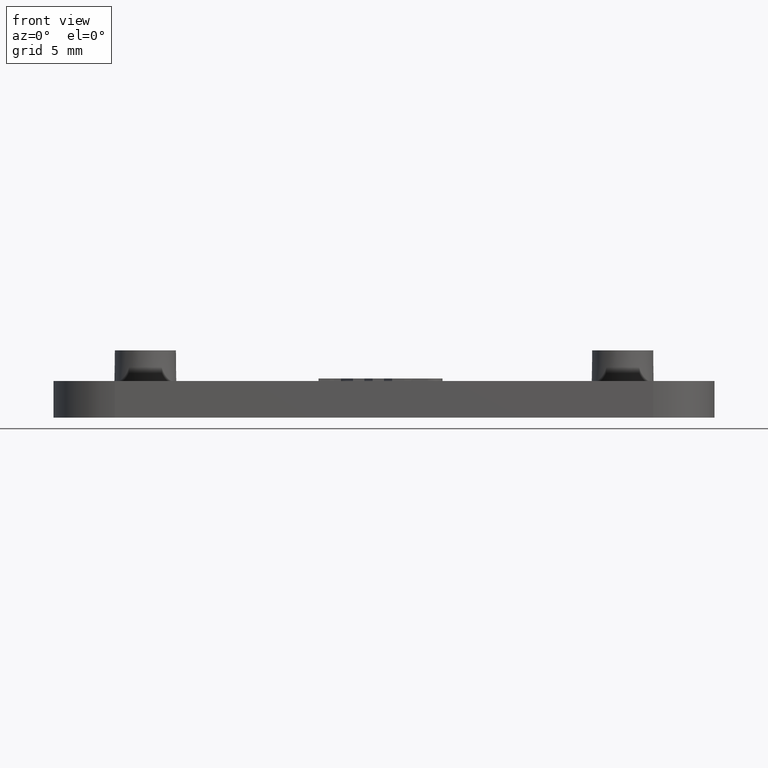
[diagram: clean part render]
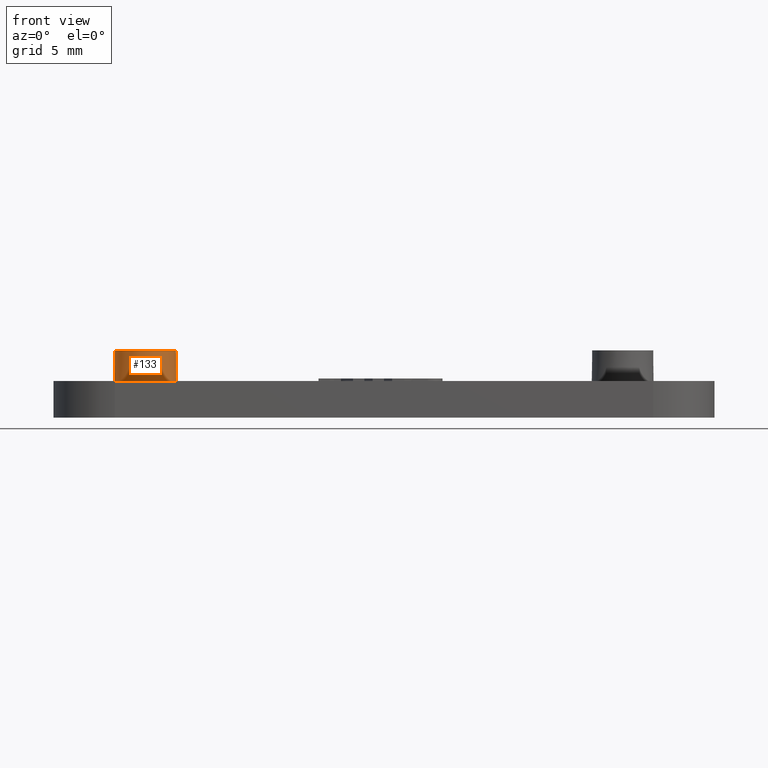
[diagram: same view with one face highlighted and labeled with its STEP entity id]
A machine part, front view. The second image highlights one B-rep face of the part: STEP entity #133.
In plain terms, the highlighted conical surface has half-angle 1 deg.
Its self-contained STEP definition (entity closure, byte-faithful):
#133 = ADVANCED_FACE( '', ( #262, #263 ), #264, .T. );
#262 = FACE_OUTER_BOUND( '', #395, .T. );
#263 = FACE_BOUND( '', #396, .T. );
#264 = CONICAL_SURFACE( '', #397, 2.50000000000000, 0.0174532925199433 );
#395 = EDGE_LOOP( '', ( #868 ) );
#396 = EDGE_LOOP( '', ( #869 ) );
#397 = AXIS2_PLACEMENT_3D( '', #870, #871, #872 );
#868 = ORIENTED_EDGE( '', *, *, #901, .F. );
#869 = ORIENTED_EDGE( '', *, *, #1029, .T. );
#870 = CARTESIAN_POINT( '', ( -19.5000000000000, -1.61479716317276E-015, 5.49999999999999 ) );
#871 = DIRECTION( '', ( 0.000000000000000, -6.12303176911189E-017, -1.00000000000000 ) );
#872 = DIRECTION( '', ( 0.000000000000000, 1.00000000000000, -6.12303176911189E-017 ) );
#901 = EDGE_CURVE( '', #1068, #1068, #1069, .T. );
#1029 = EDGE_CURVE( '', #1276, #1276, #1277, .T. );
#1068 = VERTEX_POINT( '', #1331 );
#1069 = CIRCLE( '', #1332, 2.54363766232054 );
#1276 = VERTEX_POINT( '', #1656 );
#1277 = CIRCLE( '', #1657, 2.50000000000000 );
#1331 = CARTESIAN_POINT( '', ( -19.5000000000000, 2.54363766232054, 2.99999999999999 ) );
#1332 = AXIS2_PLACEMENT_3D( '', #1685, #1686, #1687 );
#1656 = CARTESIAN_POINT( '', ( -17.0000000000000, -1.46172136894496E-015, 5.49999999999999 ) );
#1657 = AXIS2_PLACEMENT_3D( '', #1835, #1836, #1837 );
#1685 = CARTESIAN_POINT( '', ( -19.5000000000000, -1.76787295740055E-015, 2.99999999999999 ) );
#1686 = DIRECTION( '', ( 0.000000000000000, -6.12303176911189E-017, -1.00000000000000 ) );
#1687 = DIRECTION( '', ( 0.000000000000000, 1.00000000000000, -6.12303176911189E-017 ) );
#1835 = CARTESIAN_POINT( '', ( -19.5000000000000, -1.61479716317276E-015, 5.49999999999999 ) );
#1836 = DIRECTION( '', ( -4.37905770101506E-049, -6.12303176911189E-017, -1.00000000000000 ) );
#1837 = DIRECTION( '', ( 1.00000000000000, 6.12303176911188E-017, -3.74915180455534E-033 ) );